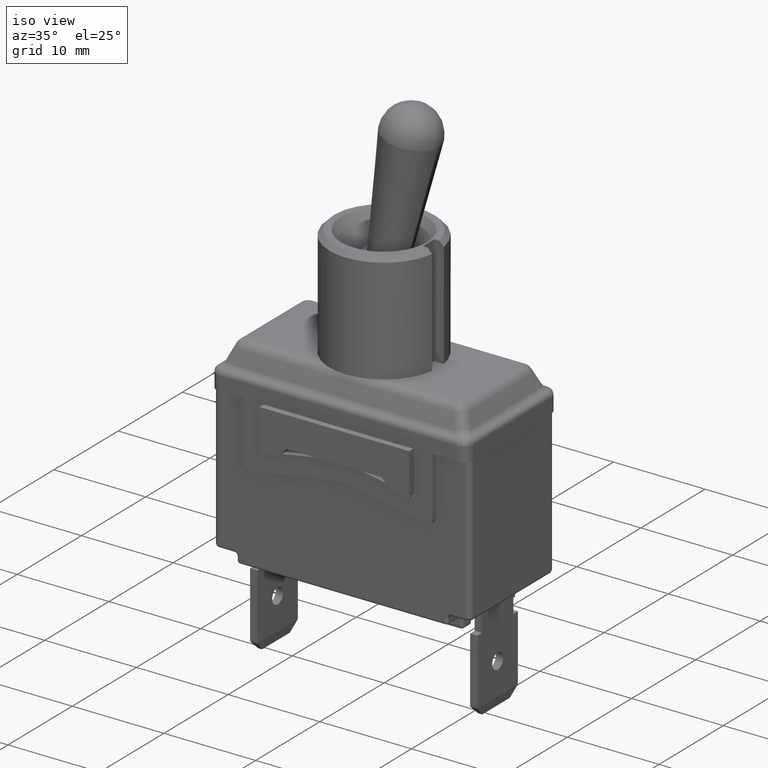
[diagram: clean part render]
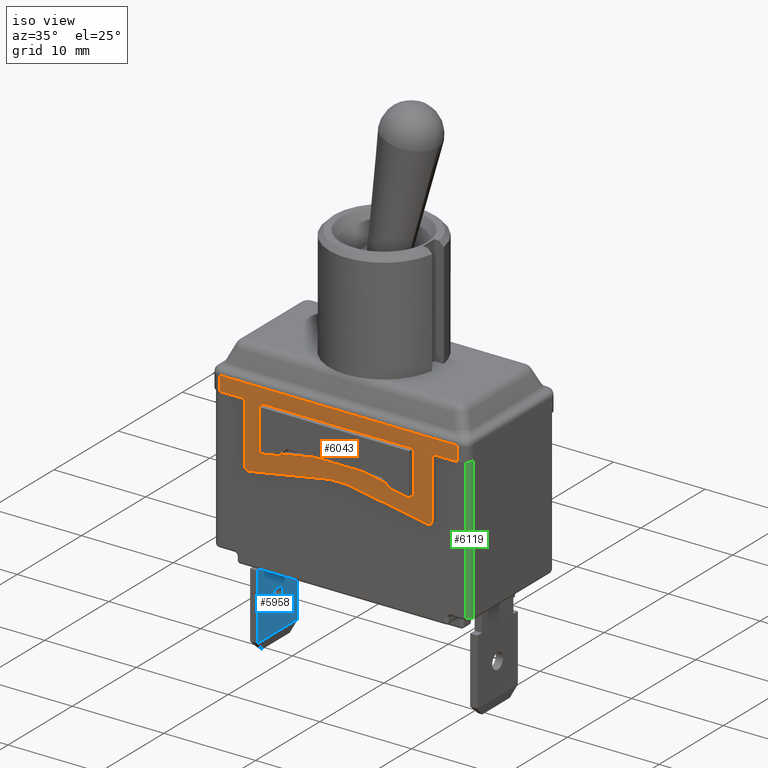
[diagram: same view with three faces highlighted in distinct colors, each labeled with its STEP entity id]
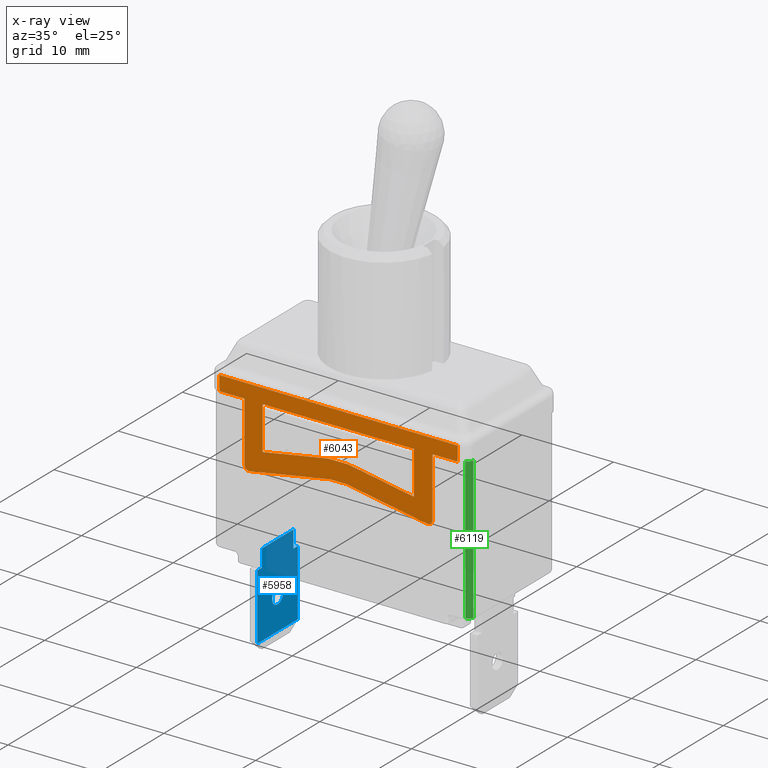
[diagram: x-ray of the same camera — body ghosted, the three highlighted faces saturated]
A machine part, iso view with three faces highlighted in distinct colors.
The next image is the same camera in x-ray (body ghosted, the three faces saturated) — at least one of them is partly hidden behind the body in this view.
Their STEP definitions:

[orange] entity #6043 — the highlighted planar face has unit normal (0, -1, 0).
#113=FACE_BOUND('',#2025,.T.);
#310=PLANE('',#6537);
#525=LINE('',#9329,#1034);
#533=LINE('',#9346,#1042);
#540=LINE('',#9369,#1049);
#548=LINE('',#9388,#1057);
#552=LINE('',#9397,#1061);
#554=LINE('',#9403,#1063);
#557=LINE('',#9409,#1066);
#560=LINE('',#9415,#1069);
#562=LINE('',#9418,#1071);
#601=LINE('',#9515,#1110);
#604=LINE('',#9525,#1113);
#607=LINE('',#9533,#1116);
#610=LINE('',#9541,#1119);
#612=LINE('',#9549,#1121);
#637=LINE('',#9623,#1146);
#638=LINE('',#9625,#1147);
#639=LINE('',#9627,#1148);
#640=LINE('',#9628,#1149);
#1034=VECTOR('',#7404,1.);
#1042=VECTOR('',#7418,1.);
#1049=VECTOR('',#7437,1.);
#1057=VECTOR('',#7451,1.);
#1061=VECTOR('',#7457,1.);
#1063=VECTOR('',#7461,1.);
#1066=VECTOR('',#7466,1.);
#1069=VECTOR('',#7471,1.);
#1071=VECTOR('',#7475,1.);
#1110=VECTOR('',#7558,1.);
#1113=VECTOR('',#7569,1.);
#1116=VECTOR('',#7578,1.);
#1119=VECTOR('',#7587,1.);
#1121=VECTOR('',#7597,1.);
#1146=VECTOR('',#7678,1.);
#1147=VECTOR('',#7679,1.);
#1148=VECTOR('',#7680,1.);
#1149=VECTOR('',#7681,1.);
#1632=FACE_OUTER_BOUND('',#2024,.T.);
#2024=EDGE_LOOP('',(#4700,#4701,#4702,#4703,#4704,#4705,#4706,#4707,#4708,
#4709,#4710,#4711,#4712,#4713));
#2025=EDGE_LOOP('',(#4714,#4715,#4716,#4717,#4718,#4719,#4720,#4721,#4722,
#4723));
#2359=CIRCLE('',#6493,0.05);
#2361=CIRCLE('',#6497,0.05);
#2363=CIRCLE('',#6501,0.05);
#2364=CIRCLE('',#6504,0.05);
#2366=CIRCLE('',#6508,0.05);
#2370=CIRCLE('',#6515,0.05);
#2723=VERTEX_POINT('',#9244);
#2732=VERTEX_POINT('',#9274);
#2755=VERTEX_POINT('',#9342);
#2765=VERTEX_POINT('',#9366);
#2766=VERTEX_POINT('',#9368);
#2774=VERTEX_POINT('',#9386);
#2776=VERTEX_POINT('',#9391);
#2778=VERTEX_POINT('',#9395);
#2779=VERTEX_POINT('',#9399);
#2781=VERTEX_POINT('',#9402);
#2783=VERTEX_POINT('',#9408);
#2784=VERTEX_POINT('',#9412);
#2785=VERTEX_POINT('',#9414);
#2818=VERTEX_POINT('',#9505);
#2821=VERTEX_POINT('',#9512);
#2822=VERTEX_POINT('',#9517);
#2824=VERTEX_POINT('',#9523);
#2825=VERTEX_POINT('',#9527);
#2826=VERTEX_POINT('',#9531);
#2828=VERTEX_POINT('',#9538);
#2829=VERTEX_POINT('',#9546);
#2851=VERTEX_POINT('',#9622);
#2852=VERTEX_POINT('',#9624);
#2853=VERTEX_POINT('',#9626);
#3369=EDGE_CURVE('',#2732,#2723,#525,.T.);
#3377=EDGE_CURVE('',#2723,#2755,#533,.T.);
#3388=EDGE_CURVE('',#2765,#2766,#540,.T.);
#3398=EDGE_CURVE('',#2774,#2732,#548,.T.);
#3402=EDGE_CURVE('',#2776,#2778,#552,.T.);
#3404=EDGE_CURVE('',#2781,#2779,#554,.T.);
#3407=EDGE_CURVE('',#2783,#2755,#557,.T.);
#3410=EDGE_CURVE('',#2785,#2784,#560,.T.);
#3412=EDGE_CURVE('',#2774,#2785,#562,.T.);
#3454=EDGE_CURVE('',#2818,#2779,#2359,.T.);
#3459=EDGE_CURVE('',#2821,#2766,#601,.T.);
#3460=EDGE_CURVE('',#2821,#2822,#2361,.T.);
#3464=EDGE_CURVE('',#2824,#2783,#604,.T.);
#3465=EDGE_CURVE('',#2824,#2825,#2363,.T.);
#3468=EDGE_CURVE('',#2826,#2825,#607,.T.);
#3469=EDGE_CURVE('',#2826,#2784,#2364,.T.);
#3472=EDGE_CURVE('',#2828,#2822,#610,.T.);
#3474=EDGE_CURVE('',#2828,#2778,#2366,.T.);
#3476=EDGE_CURVE('',#2818,#2829,#612,.T.);
#3488=EDGE_CURVE('',#2776,#2829,#2370,.T.);
#3515=EDGE_CURVE('',#2851,#2765,#637,.T.);
#3516=EDGE_CURVE('',#2852,#2851,#638,.T.);
#3517=EDGE_CURVE('',#2853,#2852,#639,.T.);
#3518=EDGE_CURVE('',#2781,#2853,#640,.T.);
#4700=ORIENTED_EDGE('',*,*,#3515,.F.);
#4701=ORIENTED_EDGE('',*,*,#3516,.F.);
#4702=ORIENTED_EDGE('',*,*,#3517,.F.);
#4703=ORIENTED_EDGE('',*,*,#3518,.F.);
#4704=ORIENTED_EDGE('',*,*,#3404,.T.);
#4705=ORIENTED_EDGE('',*,*,#3454,.F.);
#4706=ORIENTED_EDGE('',*,*,#3476,.T.);
#4707=ORIENTED_EDGE('',*,*,#3488,.F.);
#4708=ORIENTED_EDGE('',*,*,#3402,.T.);
#4709=ORIENTED_EDGE('',*,*,#3474,.F.);
#4710=ORIENTED_EDGE('',*,*,#3472,.T.);
#4711=ORIENTED_EDGE('',*,*,#3460,.F.);
#4712=ORIENTED_EDGE('',*,*,#3459,.T.);
#4713=ORIENTED_EDGE('',*,*,#3388,.F.);
#4714=ORIENTED_EDGE('',*,*,#3469,.F.);
#4715=ORIENTED_EDGE('',*,*,#3468,.T.);
#4716=ORIENTED_EDGE('',*,*,#3465,.F.);
#4717=ORIENTED_EDGE('',*,*,#3464,.T.);
#4718=ORIENTED_EDGE('',*,*,#3407,.T.);
#4719=ORIENTED_EDGE('',*,*,#3377,.F.);
#4720=ORIENTED_EDGE('',*,*,#3369,.F.);
#4721=ORIENTED_EDGE('',*,*,#3398,.F.);
#4722=ORIENTED_EDGE('',*,*,#3412,.T.);
#4723=ORIENTED_EDGE('',*,*,#3410,.T.);
#6043=ADVANCED_FACE('',(#1632,#113),#310,.T.);
#6493=AXIS2_PLACEMENT_3D('',#9506,#7549,#7550);
#6497=AXIS2_PLACEMENT_3D('',#9518,#7561,#7562);
#6501=AXIS2_PLACEMENT_3D('',#9528,#7572,#7573);
#6504=AXIS2_PLACEMENT_3D('',#9535,#7581,#7582);
#6508=AXIS2_PLACEMENT_3D('',#9544,#7592,#7593);
#6515=AXIS2_PLACEMENT_3D('',#9570,#7616,#7617);
#6537=AXIS2_PLACEMENT_3D('',#9621,#7676,#7677);
#7404=DIRECTION('',(-1.,0.,0.));
#7418=DIRECTION('',(-1.,0.,0.));
#7437=DIRECTION('',(-1.,0.,0.));
#7451=DIRECTION('',(-1.,0.,0.));
#7457=DIRECTION('',(1.,0.,0.));
#7461=DIRECTION('',(7.81551912025842E-17,0.,-1.));
#7466=DIRECTION('',(0.,0.,1.));
#7471=DIRECTION('',(-0.984807753012208,0.,0.17364817766693));
#7475=DIRECTION('',(0.,0.,-1.));
#7549=DIRECTION('center_axis',(0.,1.,0.));
#7550=DIRECTION('ref_axis',(-0.642787609686541,0.,-0.766044443118977));
#7558=DIRECTION('',(0.,0.,1.));
#7561=DIRECTION('center_axis',(0.,1.,0.));
#7562=DIRECTION('ref_axis',(0.642787609686541,0.,-0.766044443118977));
#7569=DIRECTION('',(-0.984807753012208,0.,-0.173648177666931));
#7572=DIRECTION('center_axis',(0.,1.,0.));
#7573=DIRECTION('ref_axis',(-0.0871557427476584,0.,0.996194698091746));
#7578=DIRECTION('',(-1.,0.,0.));
#7581=DIRECTION('center_axis',(0.,1.,0.));
#7582=DIRECTION('ref_axis',(0.0871557427476584,0.,0.996194698091746));
#7587=DIRECTION('',(0.984807753012208,0.,-0.17364817766693));
#7592=DIRECTION('center_axis',(0.,-1.,0.));
#7593=DIRECTION('ref_axis',(0.0871557427476583,0.,0.996194698091746));
#7597=DIRECTION('',(0.984807753012208,0.,0.17364817766693));
#7616=DIRECTION('center_axis',(0.,-1.,0.));
#7617=DIRECTION('ref_axis',(-0.0871557427476583,0.,0.996194698091746));
#7676=DIRECTION('center_axis',(0.,-1.,0.));
#7677=DIRECTION('ref_axis',(0.,0.,-1.));
#7678=DIRECTION('',(0.,0.,-1.));
#7679=DIRECTION('',(1.,0.,3.856721938129E-51));
#7680=DIRECTION('',(0.,0.,1.));
#7681=DIRECTION('',(-1.,0.,0.));
#9244=CARTESIAN_POINT('',(-0.815,-0.71,0.));
#9274=CARTESIAN_POINT('',(0.815,-0.71,0.));
#9329=CARTESIAN_POINT('',(0.7,-0.71,0.));
#9342=CARTESIAN_POINT('',(-0.825,-0.71,0.));
#9346=CARTESIAN_POINT('',(1.4,-0.71,0.));
#9366=CARTESIAN_POINT('',(1.3,-0.71,0.));
#9368=CARTESIAN_POINT('',(1.025,-0.71,-2.29621274840129E-17));
#9369=CARTESIAN_POINT('',(1.4,-0.71,0.));
#9386=CARTESIAN_POINT('',(0.825,-0.71,0.));
#9388=CARTESIAN_POINT('',(1.4,-0.71,0.));
#9391=CARTESIAN_POINT('',(-0.0833427200310469,-0.71,-0.545));
#9395=CARTESIAN_POINT('',(0.083342720031047,-0.71,-0.545));
#9397=CARTESIAN_POINT('',(-0.0877171532073431,-0.71,-0.545));
#9399=CARTESIAN_POINT('',(-1.025,-0.71,-0.650680574815074));
#9402=CARTESIAN_POINT('',(-1.025,-0.71,-2.29621274840129E-17));
#9403=CARTESIAN_POINT('',(-1.025,-0.71,-2.29621274840129E-17));
#9408=CARTESIAN_POINT('',(-0.825,-0.71,-0.471917535925942));
#9409=CARTESIAN_POINT('',(-0.825,-0.71,-0.471917535925942));
#9412=CARTESIAN_POINT('',(0.109522861619577,-0.71,-0.34575961234939));
#9414=CARTESIAN_POINT('',(0.825,-0.71,-0.471917535925942));
#9415=CARTESIAN_POINT('',(0.825,-0.71,-0.471917535925942));
#9418=CARTESIAN_POINT('',(0.825,-0.71,0.));
#9505=CARTESIAN_POINT('',(-0.966317591116654,-0.71,-0.699920962465684));
#9506=CARTESIAN_POINT('Origin',(-0.975,-0.71,-0.650680574815074));
#9512=CARTESIAN_POINT('',(1.025,-0.71,-0.650680574815074));
#9515=CARTESIAN_POINT('',(1.025,-0.71,-0.710268254444784));
#9517=CARTESIAN_POINT('',(0.966317591116653,-0.71,-0.699920962465684));
#9518=CARTESIAN_POINT('Origin',(0.975,-0.71,-0.650680574815074));
#9523=CARTESIAN_POINT('',(-0.109522861619578,-0.71,-0.34575961234939));
#9525=CARTESIAN_POINT('',(-0.105214885912528,-0.71,-0.345));
#9527=CARTESIAN_POINT('',(-0.100840452736231,-0.71,-0.345));
#9528=CARTESIAN_POINT('Origin',(-0.100840452736231,-0.71,-0.395));
#9531=CARTESIAN_POINT('',(0.100840452736231,-0.71,-0.345));
#9533=CARTESIAN_POINT('',(0.105214885912528,-0.71,-0.345));
#9535=CARTESIAN_POINT('Origin',(0.100840452736231,-0.71,-0.395));
#9538=CARTESIAN_POINT('',(0.0920251289143936,-0.71,-0.54575961234939));
#9541=CARTESIAN_POINT('',(0.0877171532073431,-0.71,-0.545));
#9544=CARTESIAN_POINT('Origin',(0.083342720031047,-0.71,-0.595));
#9546=CARTESIAN_POINT('',(-0.0920251289143934,-0.71,-0.54575961234939));
#9549=CARTESIAN_POINT('',(-1.025,-0.71,-0.710268254444784));
#9570=CARTESIAN_POINT('Origin',(-0.0833427200310469,-0.71,-0.595));
#9621=CARTESIAN_POINT('Origin',(1.4,-0.71,0.));
#9622=CARTESIAN_POINT('',(1.3,-0.71,0.16));
#9623=CARTESIAN_POINT('',(1.3,-0.71,0.));
#9624=CARTESIAN_POINT('',(-1.3,-0.71,0.16));
#9625=CARTESIAN_POINT('',(0.7,-0.71,0.16));
#9626=CARTESIAN_POINT('',(-1.3,-0.71,0.));
#9627=CARTESIAN_POINT('',(-1.3,-0.71,0.));
#9628=CARTESIAN_POINT('',(1.4,-0.71,0.));

[blue] entity #5958 — the highlighted planar face has unit normal (1, -0, -0).
#108=FACE_BOUND('',#1935,.T.);
#247=PLANE('',#6397);
#423=LINE('',#9018,#932);
#440=LINE('',#9062,#949);
#441=LINE('',#9065,#950);
#442=LINE('',#9066,#951);
#443=LINE('',#9068,#952);
#444=LINE('',#9070,#953);
#445=LINE('',#9072,#954);
#446=LINE('',#9073,#955);
#932=VECTOR('',#7160,1.);
#949=VECTOR('',#7199,1.);
#950=VECTOR('',#7202,1.);
#951=VECTOR('',#7203,1.);
#952=VECTOR('',#7204,1.);
#953=VECTOR('',#7205,1.);
#954=VECTOR('',#7206,1.);
#955=VECTOR('',#7207,1.);
#1547=FACE_OUTER_BOUND('',#1934,.T.);
#1934=EDGE_LOOP('',(#4253,#4254,#4255,#4256,#4257,#4258,#4259,#4260));
#1935=EDGE_LOOP('',(#4261));
#2324=CIRCLE('',#6392,0.085);
#2658=VERTEX_POINT('',#9015);
#2659=VERTEX_POINT('',#9017);
#2667=VERTEX_POINT('',#9037);
#2674=VERTEX_POINT('',#9056);
#2675=VERTEX_POINT('',#9060);
#2676=VERTEX_POINT('',#9064);
#2677=VERTEX_POINT('',#9067);
#2678=VERTEX_POINT('',#9069);
#2679=VERTEX_POINT('',#9071);
#3237=EDGE_CURVE('',#2659,#2658,#423,.T.);
#3248=EDGE_CURVE('',#2667,#2667,#2324,.T.);
#3259=EDGE_CURVE('',#2674,#2675,#440,.T.);
#3260=EDGE_CURVE('',#2674,#2676,#441,.T.);
#3261=EDGE_CURVE('',#2676,#2659,#442,.T.);
#3262=EDGE_CURVE('',#2677,#2658,#443,.T.);
#3263=EDGE_CURVE('',#2677,#2678,#444,.T.);
#3264=EDGE_CURVE('',#2678,#2679,#445,.T.);
#3265=EDGE_CURVE('',#2679,#2675,#446,.T.);
#4253=ORIENTED_EDGE('',*,*,#3259,.F.);
#4254=ORIENTED_EDGE('',*,*,#3260,.T.);
#4255=ORIENTED_EDGE('',*,*,#3261,.T.);
#4256=ORIENTED_EDGE('',*,*,#3237,.T.);
#4257=ORIENTED_EDGE('',*,*,#3262,.F.);
#4258=ORIENTED_EDGE('',*,*,#3263,.T.);
#4259=ORIENTED_EDGE('',*,*,#3264,.T.);
#4260=ORIENTED_EDGE('',*,*,#3265,.T.);
#4261=ORIENTED_EDGE('',*,*,#3248,.T.);
#5958=ADVANCED_FACE('',(#1547,#108),#247,.T.);
#6392=AXIS2_PLACEMENT_3D('',#9039,#7179,#7180);
#6397=AXIS2_PLACEMENT_3D('',#9063,#7200,#7201);
#7160=DIRECTION('',(9.55261252416069E-32,2.85573089352787E-32,1.));
#7179=DIRECTION('center_axis',(-1.,4.9960036108132E-16,9.40202997669718E-32));
#7180=DIRECTION('ref_axis',(9.55261252416069E-32,2.85573089352787E-32,1.));
#7199=DIRECTION('',(-4.9960036108132E-16,-1.,2.85573089352787E-32));
#7200=DIRECTION('center_axis',(1.,-4.9960036108132E-16,-9.40202997669718E-32));
#7201=DIRECTION('ref_axis',(4.9960036108132E-16,1.,-2.85573089352787E-32));
#7202=DIRECTION('',(9.55261252416069E-32,2.85573089352787E-32,1.));
#7203=DIRECTION('',(-4.9960036108132E-16,-1.,2.85573089352787E-32));
#7204=DIRECTION('',(4.9960036108132E-16,1.,-2.85573089352787E-32));
#7205=DIRECTION('',(-2.57304240570135E-31,-3.23815048849004E-16,-1.));
#7206=DIRECTION('',(-4.9960036108132E-16,-1.,2.85573089352787E-32));
#7207=DIRECTION('',(-9.55261252416069E-32,-2.85573089352787E-32,-1.));
#9015=CARTESIAN_POINT('',(-1.16,0.245,-1.69));
#9017=CARTESIAN_POINT('',(-1.16,0.245,-1.88));
#9018=CARTESIAN_POINT('',(-1.16,0.245,-1.77));
#9037=CARTESIAN_POINT('',(-1.16,1.19486596088391E-16,-2.335));
#9039=CARTESIAN_POINT('Origin',(-1.16,1.29896093881144E-16,-2.25));
#9056=CARTESIAN_POINT('',(-1.16,0.315,-2.6));
#9060=CARTESIAN_POINT('',(-1.16,-0.315,-2.6));
#9062=CARTESIAN_POINT('',(-1.16,1.29896093881144E-16,-2.6));
#9063=CARTESIAN_POINT('Origin',(-1.16,1.29896093881144E-16,-1.66));
#9064=CARTESIAN_POINT('',(-1.16,0.315,-1.88));
#9065=CARTESIAN_POINT('',(-1.16,0.315,-2.7));
#9066=CARTESIAN_POINT('',(-1.16,0.1575,-1.88));
#9067=CARTESIAN_POINT('',(-1.16,-0.245,-1.69));
#9068=CARTESIAN_POINT('',(-1.16,1.29896093881144E-16,-1.69));
#9069=CARTESIAN_POINT('',(-1.16,-0.245,-1.88));
#9070=CARTESIAN_POINT('',(-1.16,-0.245,-1.62));
#9071=CARTESIAN_POINT('',(-1.16,-0.315,-1.88));
#9072=CARTESIAN_POINT('',(-1.16,-0.1225,-1.88));
#9073=CARTESIAN_POINT('',(-1.16,-0.315,-2.7));

[green] entity #6119 — the highlighted cylindrical surface (edge-blend (fillet) strip) has radius 0.5 mm, axis along (0, 0, -1).
#615=LINE('',#9555,#1124);
#811=LINE('',#10836,#1320);
#1124=VECTOR('',#7602,1.);
#1320=VECTOR('',#8094,1.);
#1429=CYLINDRICAL_SURFACE('',#6659,0.05);
#1708=FACE_OUTER_BOUND('',#2104,.T.);
#2104=EDGE_LOOP('',(#5160,#5161,#5162,#5163));
#2351=CIRCLE('',#6466,0.05);
#2439=CIRCLE('',#6660,0.05);
#2768=VERTEX_POINT('',#9372);
#2769=VERTEX_POINT('',#9374);
#2831=VERTEX_POINT('',#9552);
#3086=VERTEX_POINT('',#10834);
#3391=EDGE_CURVE('',#2769,#2768,#2351,.F.);
#3479=EDGE_CURVE('',#2768,#2831,#615,.T.);
#3812=EDGE_CURVE('',#3086,#2769,#811,.T.);
#3813=EDGE_CURVE('',#3086,#2831,#2439,.T.);
#5160=ORIENTED_EDGE('',*,*,#3813,.F.);
#5161=ORIENTED_EDGE('',*,*,#3812,.T.);
#5162=ORIENTED_EDGE('',*,*,#3391,.T.);
#5163=ORIENTED_EDGE('',*,*,#3479,.T.);
#6119=ADVANCED_FACE('',(#1708),#1429,.T.);
#6466=AXIS2_PLACEMENT_3D('',#9375,#7440,#7441);
#6659=AXIS2_PLACEMENT_3D('',#10837,#8095,#8096);
#6660=AXIS2_PLACEMENT_3D('',#10838,#8097,#8098);
#7440=DIRECTION('center_axis',(0.,0.,1.));
#7441=DIRECTION('ref_axis',(0.707106781186549,-0.707106781186546,0.));
#7602=DIRECTION('',(0.,0.,-1.));
#8094=DIRECTION('',(0.,0.,1.));
#8095=DIRECTION('center_axis',(0.,0.,-1.));
#8096=DIRECTION('ref_axis',(0.707106781186549,-0.707106781186546,0.));
#8097=DIRECTION('center_axis',(0.,0.,-1.));
#8098=DIRECTION('ref_axis',(0.707106781186549,-0.707106781186546,0.));
#9372=CARTESIAN_POINT('',(1.3475,-0.655,0.));
#9374=CARTESIAN_POINT('',(1.3975,-0.605,0.));
#9375=CARTESIAN_POINT('Origin',(1.3475,-0.605,0.));
#9552=CARTESIAN_POINT('',(1.3475,-0.655,-1.55));
#9555=CARTESIAN_POINT('',(1.3475,-0.655,0.));
#10834=CARTESIAN_POINT('',(1.3975,-0.605,-1.55));
#10836=CARTESIAN_POINT('',(1.3975,-0.605,0.));
#10837=CARTESIAN_POINT('Origin',(1.3475,-0.605,0.));
#10838=CARTESIAN_POINT('Origin',(1.3475,-0.605,-1.55));